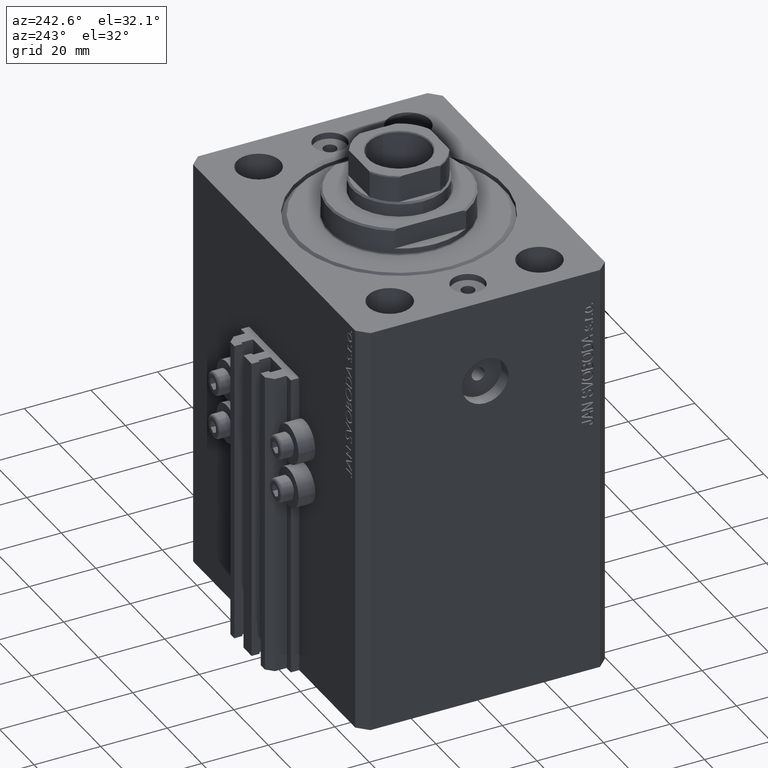
[diagram: clean part render]
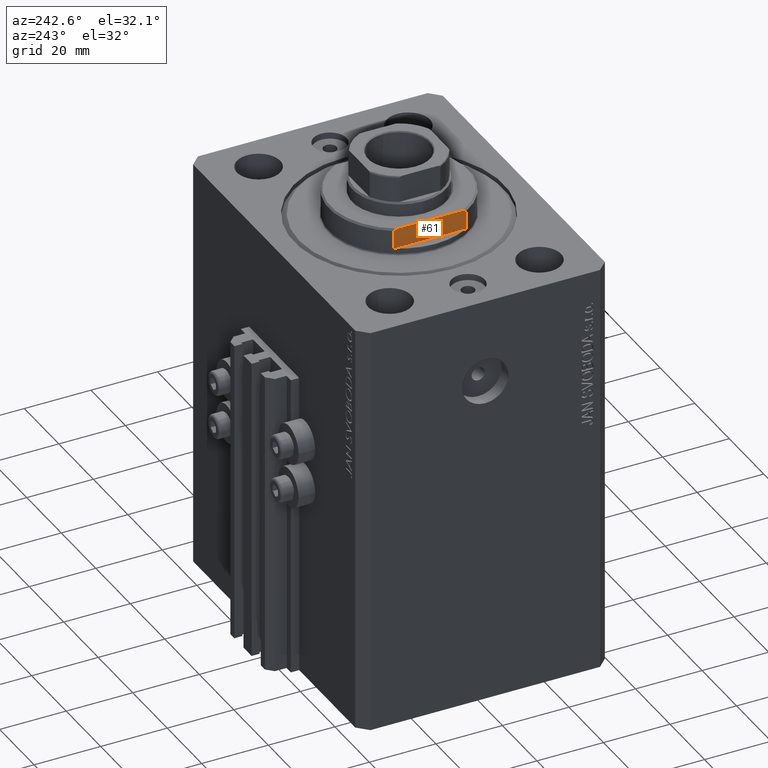
[diagram: same view with one face highlighted and labeled with its STEP entity id]
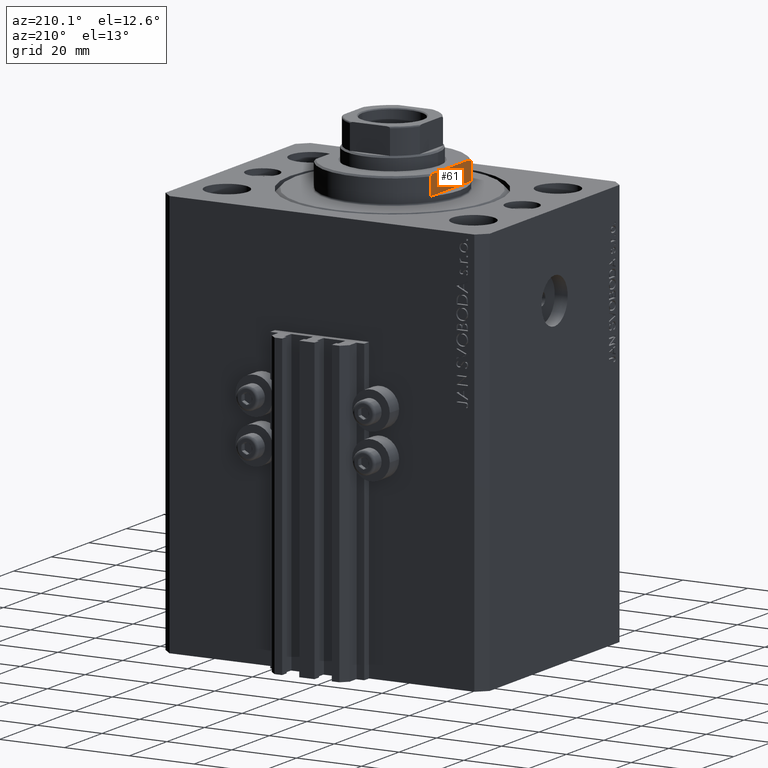
[diagram: same view with one face highlighted and labeled with its STEP entity id]
A machine part, auxiliary view. The second image highlights one B-rep face of the part: STEP entity #61.
A second angle (auxiliary view) of the same face is appended — the face is thin or edge-on in the first view.
In plain terms, the highlighted planar face has unit normal (-1, 0, 0).
Its self-contained STEP definition (entity closure, byte-faithful):
#61 = ADVANCED_FACE ( 'NONE', ( #31135 ), #24676, .T. ) ;
#929 = CARTESIAN_POINT ( 'NONE',  ( 18.00000000000000000, -9.810708435174332109, -8.000000000000000000 ) ) ;
#2736 = CARTESIAN_POINT ( 'NONE',  ( 18.00000000000000000, -41.24318125460256113, -8.000000000000000000 ) ) ;
#3681 = VERTEX_POINT ( 'NONE', #35471 ) ;
#6661 = EDGE_CURVE ( 'NONE', #42372, #3681, #46796, .T. ) ;
#7015 = DIRECTION ( 'NONE',  ( -0.000000000000000000, -0.000000000000000000, 1.000000000000000000 ) ) ;
#9137 = EDGE_CURVE ( 'NONE', #30707, #25868, #25190, .T. ) ;
#9353 = EDGE_CURVE ( 'NONE', #25868, #3681, #10590, .T. ) ;
#10590 = LINE ( 'NONE', #22234, #17688 ) ;
#10759 = EDGE_CURVE ( 'NONE', #25939, #13255, #44895, .T. ) ;
#11334 = AXIS2_PLACEMENT_3D ( 'NONE', #42358, #31836, #31599 ) ;
#13255 = VERTEX_POINT ( 'NONE', #34939 ) ;
#14181 = DIRECTION ( 'NONE',  ( 0.000000000000000000, -1.000000000000000000, -0.000000000000000000 ) ) ;
#14870 = LINE ( 'NONE', #36131, #41661 ) ;
#16646 = CARTESIAN_POINT ( 'NONE',  ( 18.00000000000000000, -9.810708435174332109, -8.000000000000000000 ) ) ;
#17688 = VECTOR ( 'NONE', #39935, 1000.000000000000000 ) ;
#18858 = ORIENTED_EDGE ( 'NONE', *, *, #20675, .T. ) ;
#20675 = EDGE_CURVE ( 'NONE', #25939, #30707, #14870, .T. ) ;
#21589 = CARTESIAN_POINT ( 'NONE',  ( 18.00000000000000000, -41.24318125460256113, -2.000000000000000000 ) ) ;
#22234 = CARTESIAN_POINT ( 'NONE',  ( 18.00000000000000000, -10.81665382639197048, -8.000000000000000000 ) ) ;
#24011 = ORIENTED_EDGE ( 'NONE', *, *, #9137, .T. ) ;
#24676 = PLANE ( 'NONE',  #11334 ) ;
#25160 = LINE ( 'NONE', #2736, #35673 ) ;
#25190 = LINE ( 'NONE', #21589, #32921 ) ;
#25868 = VERTEX_POINT ( 'NONE', #44029 ) ;
#25882 = CARTESIAN_POINT ( 'NONE',  ( 18.00000000000000000, 10.81665382639197048, -7.500000000000016875 ) ) ;
#25939 = VERTEX_POINT ( 'NONE', #38263 ) ;
#26457 = CARTESIAN_POINT ( 'NONE',  ( 18.00000000000000000, -10.48405973417029635, -7.671312150488893700 ) ) ;
#28161 = CARTESIAN_POINT ( 'NONE',  ( 18.00000000000000000, 10.81665382639197048, -2.000000000000000000 ) ) ;
#29450 = CARTESIAN_POINT ( 'NONE',  ( 18.00000000000000000, 10.48362233087180861, -7.671537447634646512 ) ) ;
#29689 = CARTESIAN_POINT ( 'NONE',  ( 18.00000000000000000, 10.14839560199154711, -7.838392666539328424 ) ) ;
#30028 = CARTESIAN_POINT ( 'NONE',  ( 18.00000000000000000, -10.14885752588744872, -7.838171603092472850 ) ) ;
#30128 = EDGE_LOOP ( 'NONE', ( #18858, #24011, #34090, #35030, #40559, #32736 ) ) ;
#30707 = VERTEX_POINT ( 'NONE', #28161 ) ;
#31135 = FACE_OUTER_BOUND ( 'NONE', #30128, .T. ) ;
#31599 = DIRECTION ( 'NONE',  ( -0.000000000000000000, 0.000000000000000000, -1.000000000000000000 ) ) ;
#31836 = DIRECTION ( 'NONE',  ( 1.000000000000000000, 0.000000000000000000, -0.000000000000000000 ) ) ;
#32736 = ORIENTED_EDGE ( 'NONE', *, *, #10759, .F. ) ;
#32814 = DIRECTION ( 'NONE',  ( 0.000000000000000000, -1.000000000000000000, -0.000000000000000000 ) ) ;
#32921 = VECTOR ( 'NONE', #32814, 1000.000000000000000 ) ;
#34090 = ORIENTED_EDGE ( 'NONE', *, *, #9353, .T. ) ;
#34939 = CARTESIAN_POINT ( 'NONE',  ( 18.00000000000000000, 9.810708435174332109, -8.000000000000000000 ) ) ;
#35030 = ORIENTED_EDGE ( 'NONE', *, *, #6661, .F. ) ;
#35471 = CARTESIAN_POINT ( 'NONE',  ( 18.00000000000000000, -10.81665382639197048, -7.500000000000016875 ) ) ;
#35673 = VECTOR ( 'NONE', #14181, 1000.000000000000000 ) ;
#36131 = CARTESIAN_POINT ( 'NONE',  ( 18.00000000000000000, 10.81665382639197048, -8.000000000000000000 ) ) ;
#38263 = CARTESIAN_POINT ( 'NONE',  ( 18.00000000000000000, 10.81665382639197048, -7.500000000000016875 ) ) ;
#39935 = DIRECTION ( 'NONE',  ( 0.000000000000000000, 0.000000000000000000, -1.000000000000000000 ) ) ;
#40559 = ORIENTED_EDGE ( 'NONE', *, *, #47059, .F. ) ;
#41031 = CARTESIAN_POINT ( 'NONE',  ( 18.00000000000000000, -10.81665382639197048, -7.500000000000016875 ) ) ;
#41661 = VECTOR ( 'NONE', #7015, 1000.000000000000000 ) ;
#42358 = CARTESIAN_POINT ( 'NONE',  ( 18.00000000000000000, -41.24318125460256113, -2.000000000000000000 ) ) ;
#42372 = VERTEX_POINT ( 'NONE', #16646 ) ;
#44029 = CARTESIAN_POINT ( 'NONE',  ( 18.00000000000000000, -10.81665382639197048, -2.000000000000000000 ) ) ;
#44494 = CARTESIAN_POINT ( 'NONE',  ( 18.00000000000000000, 9.810708435174332109, -8.000000000000000000 ) ) ;
#44895 = B_SPLINE_CURVE_WITH_KNOTS ( 'NONE', 3,
 ( #25882, #29450, #29689, #44494 ),
 .UNSPECIFIED., .F., .F.,
 ( 4, 4 ),
 ( 0.04062426037072788820, 0.04174950919407467015 ),
 .UNSPECIFIED. ) ;
#46796 = B_SPLINE_CURVE_WITH_KNOTS ( 'NONE', 3,
 ( #929, #30028, #26457, #41031 ),
 .UNSPECIFIED., .F., .F.,
 ( 4, 4 ),
 ( 0.06217926064546154541, 0.06331210020888052015 ),
 .UNSPECIFIED. ) ;
#47059 = EDGE_CURVE ( 'NONE', #13255, #42372, #25160, .T. ) ;